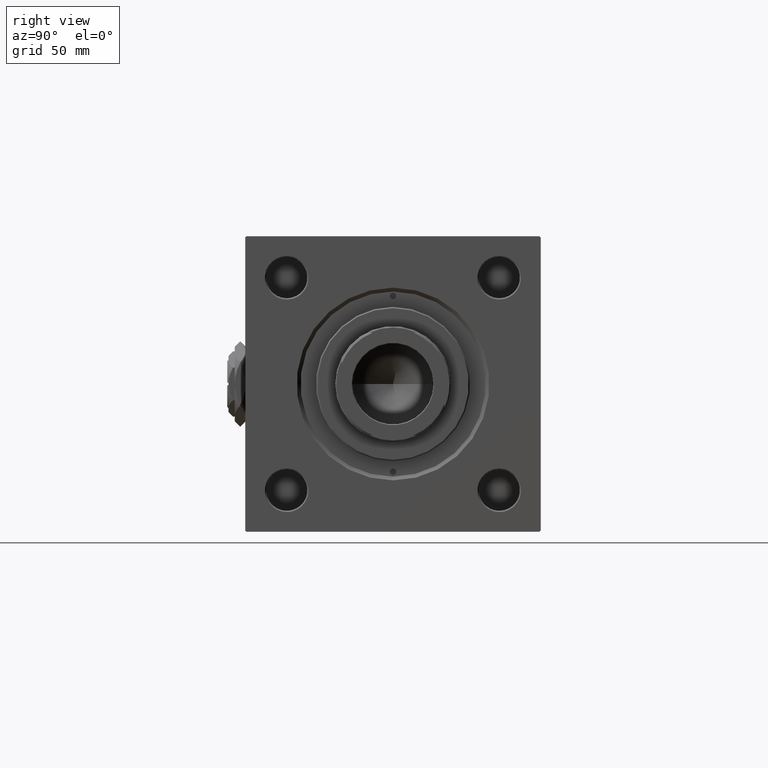
[diagram: clean part render]
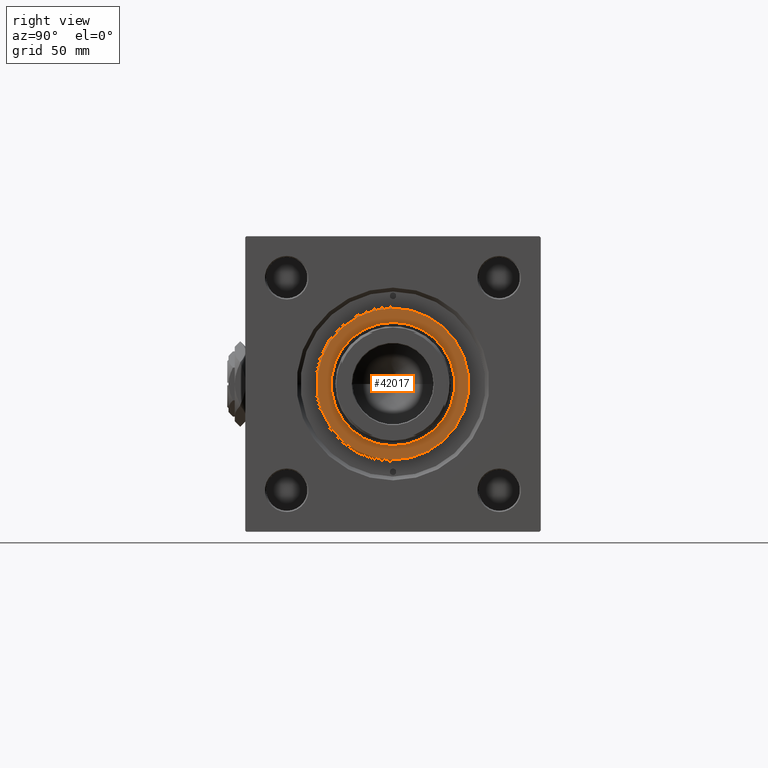
[diagram: same view with one face highlighted and labeled with its STEP entity id]
A machine part, right view. The second image highlights one B-rep face of the part: STEP entity #42017.
In plain terms, the highlighted planar face has unit normal (1, 0, 0).
Its self-contained STEP definition (entity closure, byte-faithful):
#1582 = EDGE_LOOP ( 'NONE', ( #20796, #12697 ) ) ;
#3725 = EDGE_CURVE ( 'NONE', #18333, #35305, #35180, .T. ) ;
#4497 = EDGE_CURVE ( 'NONE', #13440, #21178, #31822, .T. ) ;
#5262 = ORIENTED_EDGE ( 'NONE', *, *, #6063, .T. ) ;
#5618 = CIRCLE ( 'NONE', #36335, 24.00000000000000355 ) ;
#6063 = EDGE_CURVE ( 'NONE', #21178, #13440, #17268, .T. ) ;
#8995 = DIRECTION ( 'NONE',  ( 0.000000000000000000, 0.000000000000000000, 1.000000000000000000 ) ) ;
#9637 = DIRECTION ( 'NONE',  ( 1.000000000000000000, 0.000000000000000000, -0.000000000000000000 ) ) ;
#9893 = FACE_BOUND ( 'NONE', #1582, .T. ) ;
#12697 = ORIENTED_EDGE ( 'NONE', *, *, #3725, .F. ) ;
#13440 = VERTEX_POINT ( 'NONE', #22008 ) ;
#14171 = EDGE_LOOP ( 'NONE', ( #23994, #5262 ) ) ;
#14693 = AXIS2_PLACEMENT_3D ( 'NONE', #40441, #24408, #24926 ) ;
#14846 = CARTESIAN_POINT ( 'NONE',  ( 0.000000000000000000, 0.000000000000000000, 37.69999999999999574 ) ) ;
#15125 = EDGE_CURVE ( 'NONE', #35305, #18333, #5618, .T. ) ;
#17268 = CIRCLE ( 'NONE', #14693, 29.50000000000000000 ) ;
#18333 = VERTEX_POINT ( 'NONE', #50968 ) ;
#18438 = DIRECTION ( 'NONE',  ( 0.000000000000000000, 0.000000000000000000, 1.000000000000000000 ) ) ;
#18860 = DIRECTION ( 'NONE',  ( 1.000000000000000000, 0.000000000000000000, 0.000000000000000000 ) ) ;
#19120 = DIRECTION ( 'NONE',  ( 1.000000000000000000, 0.000000000000000000, 0.000000000000000000 ) ) ;
#20796 = ORIENTED_EDGE ( 'NONE', *, *, #15125, .F. ) ;
#21178 = VERTEX_POINT ( 'NONE', #36006 ) ;
#21799 = CARTESIAN_POINT ( 'NONE',  ( 0.000000000000000000, 0.000000000000000000, 37.69999999999999574 ) ) ;
#22008 = CARTESIAN_POINT ( 'NONE',  ( -29.50000000000000000, 0.000000000000000000, 37.69999999999999574 ) ) ;
#23994 = ORIENTED_EDGE ( 'NONE', *, *, #4497, .T. ) ;
#24408 = DIRECTION ( 'NONE',  ( 0.000000000000000000, 0.000000000000000000, 1.000000000000000000 ) ) ;
#24926 = DIRECTION ( 'NONE',  ( 1.000000000000000000, 0.000000000000000000, 0.000000000000000000 ) ) ;
#25033 = DIRECTION ( 'NONE',  ( 1.000000000000000000, 0.000000000000000000, 0.000000000000000000 ) ) ;
#26194 = CARTESIAN_POINT ( 'NONE',  ( 0.000000000000000000, 0.000000000000000000, 37.69999999999999574 ) ) ;
#26616 = DIRECTION ( 'NONE',  ( 0.000000000000000000, 0.000000000000000000, 1.000000000000000000 ) ) ;
#28374 = AXIS2_PLACEMENT_3D ( 'NONE', #26194, #18438, #9637 ) ;
#29934 = FACE_OUTER_BOUND ( 'NONE', #14171, .T. ) ;
#31137 = DIRECTION ( 'NONE',  ( 0.000000000000000000, 0.000000000000000000, 1.000000000000000000 ) ) ;
#31822 = CIRCLE ( 'NONE', #36950, 29.50000000000000000 ) ;
#35180 = CIRCLE ( 'NONE', #37750, 24.00000000000000355 ) ;
#35305 = VERTEX_POINT ( 'NONE', #45685 ) ;
#36006 = CARTESIAN_POINT ( 'NONE',  ( 29.50000000000000000, 3.643324227463375391E-15, 37.69999999999999574 ) ) ;
#36335 = AXIS2_PLACEMENT_3D ( 'NONE', #21799, #8995, #25033 ) ;
#36950 = AXIS2_PLACEMENT_3D ( 'NONE', #38914, #26616, #18860 ) ;
#37750 = AXIS2_PLACEMENT_3D ( 'NONE', #14846, #31137, #19120 ) ;
#38914 = CARTESIAN_POINT ( 'NONE',  ( 0.000000000000000000, 0.000000000000000000, 37.69999999999999574 ) ) ;
#40441 = CARTESIAN_POINT ( 'NONE',  ( 0.000000000000000000, 0.000000000000000000, 37.69999999999999574 ) ) ;
#42017 = ADVANCED_FACE ( 'NONE', ( #9893, #29934 ), #46249, .T. ) ;
#45685 = CARTESIAN_POINT ( 'NONE',  ( 24.00000000000000355, 0.000000000000000000, 37.69999999999999574 ) ) ;
#46249 = PLANE ( 'NONE',  #28374 ) ;
#50968 = CARTESIAN_POINT ( 'NONE',  ( -24.00000000000000355, 2.939152317953648289E-15, 37.69999999999999574 ) ) ;